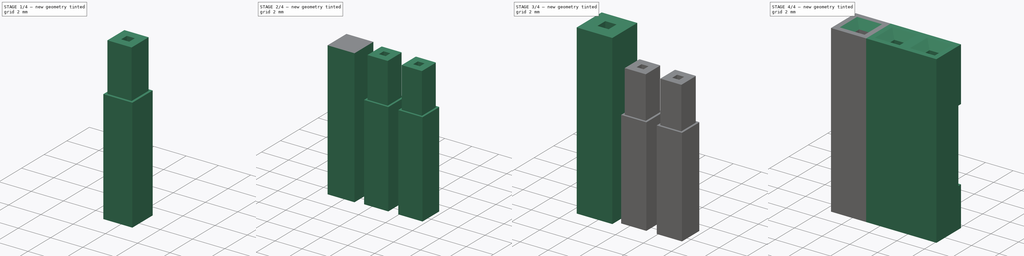
[diagram: build sequence overview — one tinted view per stage of 4, left to right]
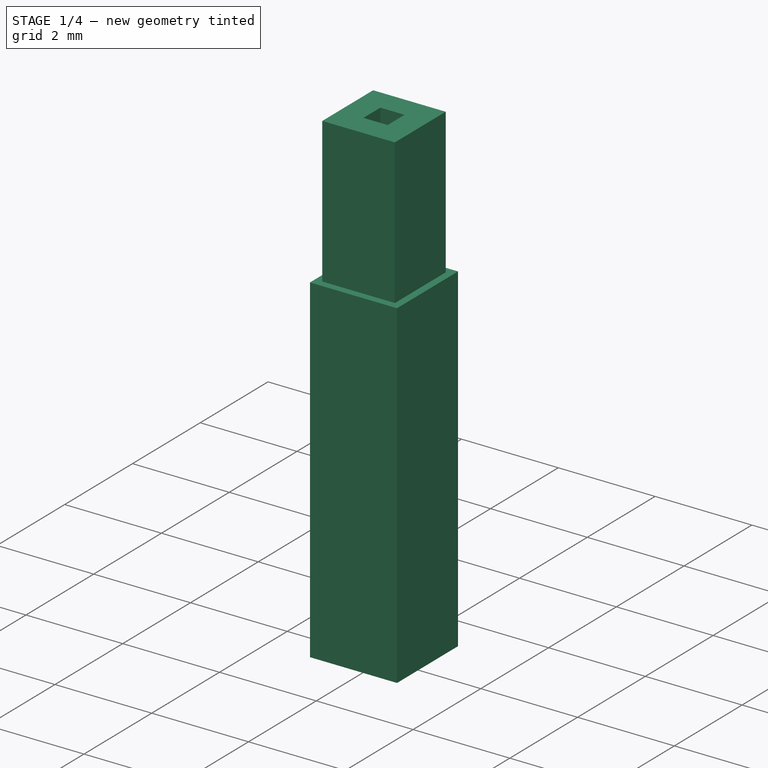
[diagram: stage 1 of 4 — iso view after this stage's code; geometry added in this stage tinted green]
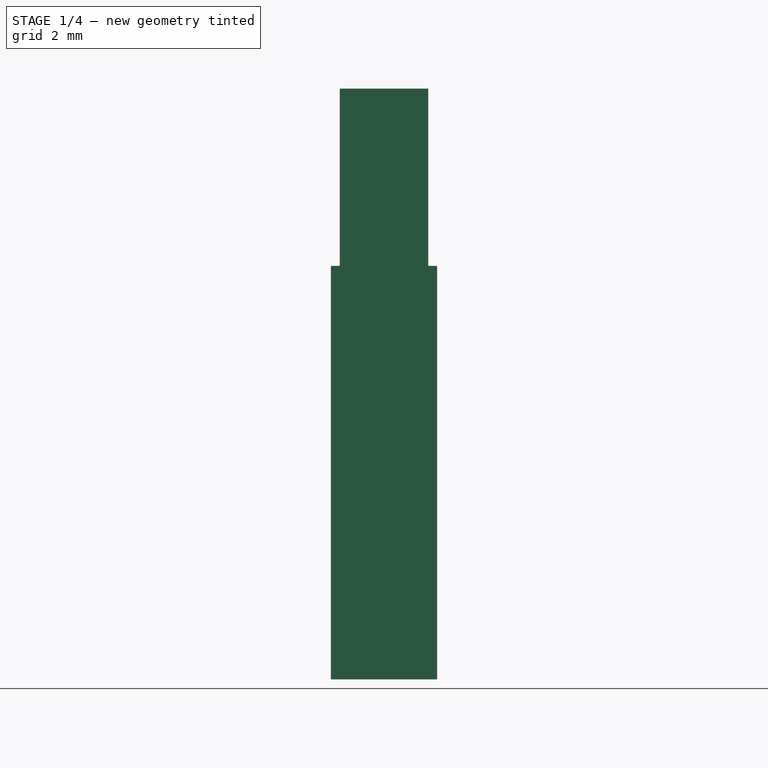
[diagram: stage 1 of 4 — front view after this stage's code; geometry added in this stage tinted green]
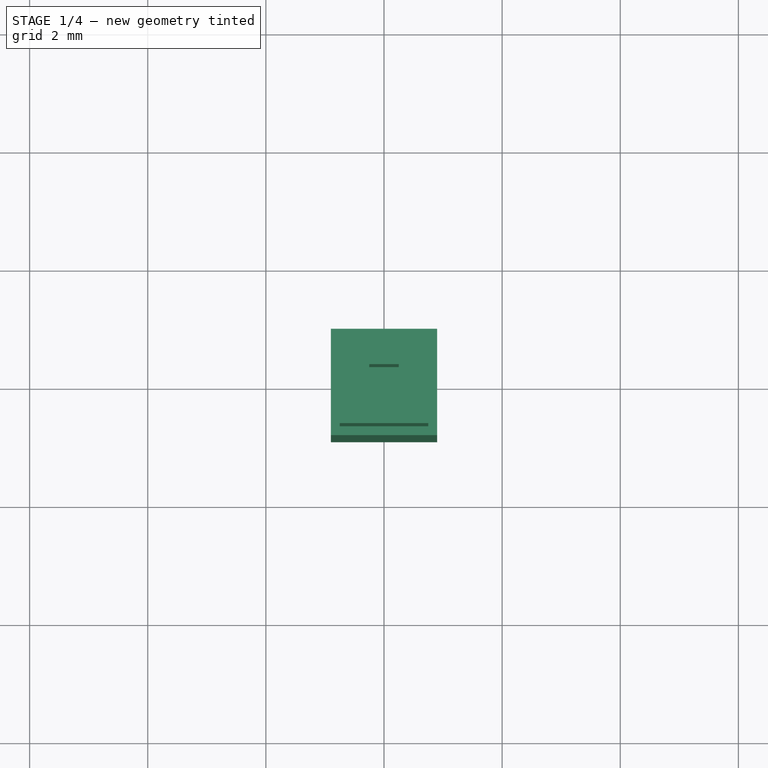
[diagram: stage 1 of 4 — top view after this stage's code; geometry added in this stage tinted green]
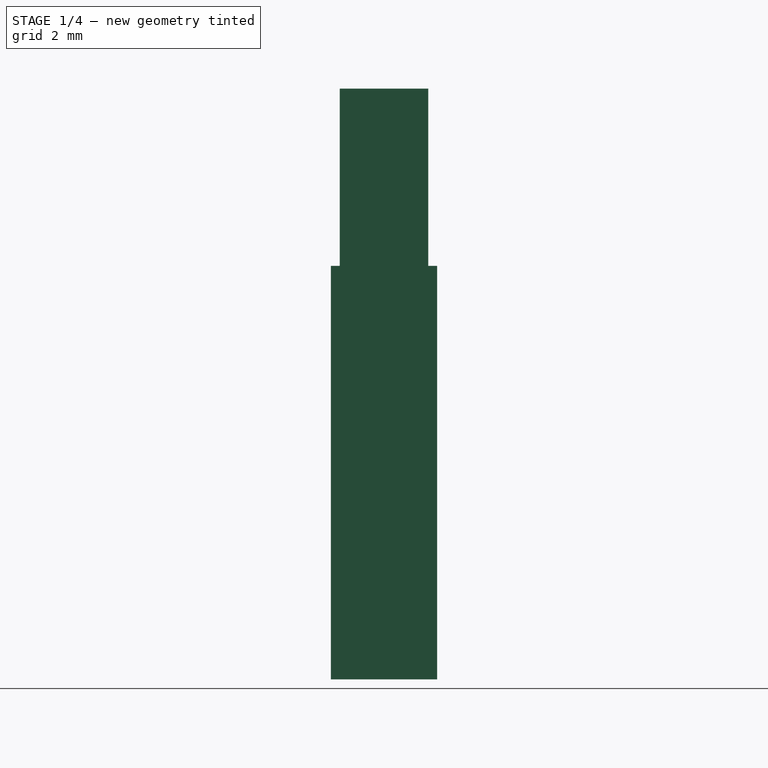
[diagram: stage 1 of 4 — right view after this stage's code; geometry added in this stage tinted green]
FCSTD DOCUMENT  (FreeCAD 0.16R6703 (Git))
Label: dupont-2_54mm-female-connector
License: CreativeCommons Attribution-ShareAlike
LicenseURL: http://creativecommons.org/licenses/by-sa/4.0/
objects: Part::Box×5, Part::Cut×2, Part::FeaturePython×2, Sketcher::SketchObject×1, PartDesign::Pocket×1, PartDesign::Chamfer×1, Part::Thickness×1, Part::MultiFuse×1, Part::Fillet×1, Spreadsheet::Sheet×1
note: 16 computed .brp shape members not serialized (recipe doc carries the construction recipe); baked Part::Feature solids carry a one-line shape summary decoded from their .brp

FEATURE [Part::Box] Box003  label="PinRear"
  Height = 7
  Length = 1.8
  Placement = pos=(-0.9,-0.9,0) rot=(0,0,1;0rad)
  Width = 1.8
FEATURE [Part::Box] Box004  label="PinFront"
  Height = 7
  Length = 1.5
  Placement = pos=(-0.75,-0.75,3) rot=(0,0,1;0rad)
  Width = 1.5
FEATURE [Part::Thickness] Thickness
  Faces = -> Box004 [Face6]
  Intersection = false
  Join = 0
  Mode = 0
  SelfIntersection = false
  Value = -0.5
FEATURE [Part::MultiFuse] Fusion  label="FemalePin"
  Shapes = -> [Box003,Thickness]
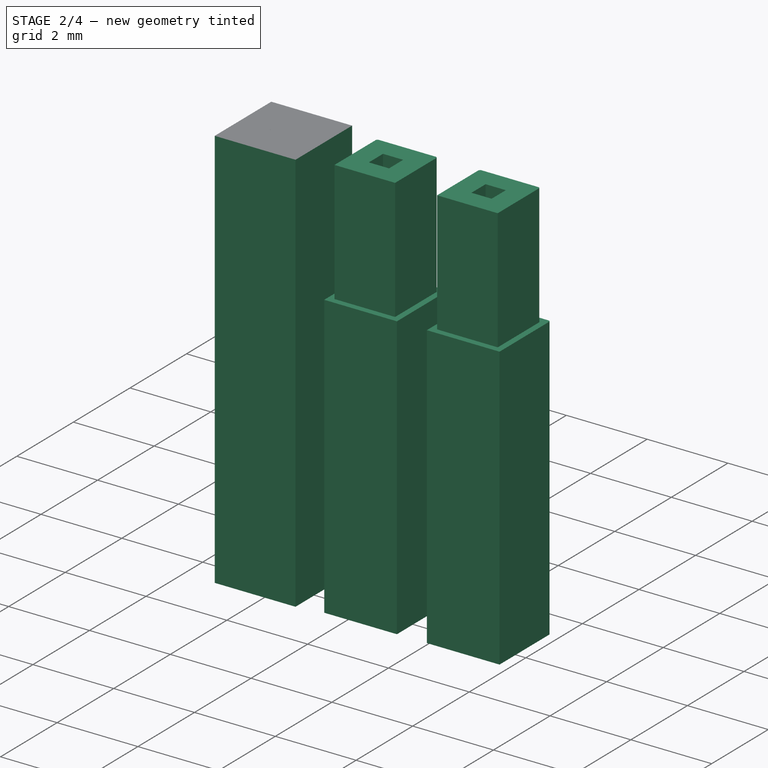
[diagram: stage 2 of 4 — iso view after this stage's code; geometry added in this stage tinted green]
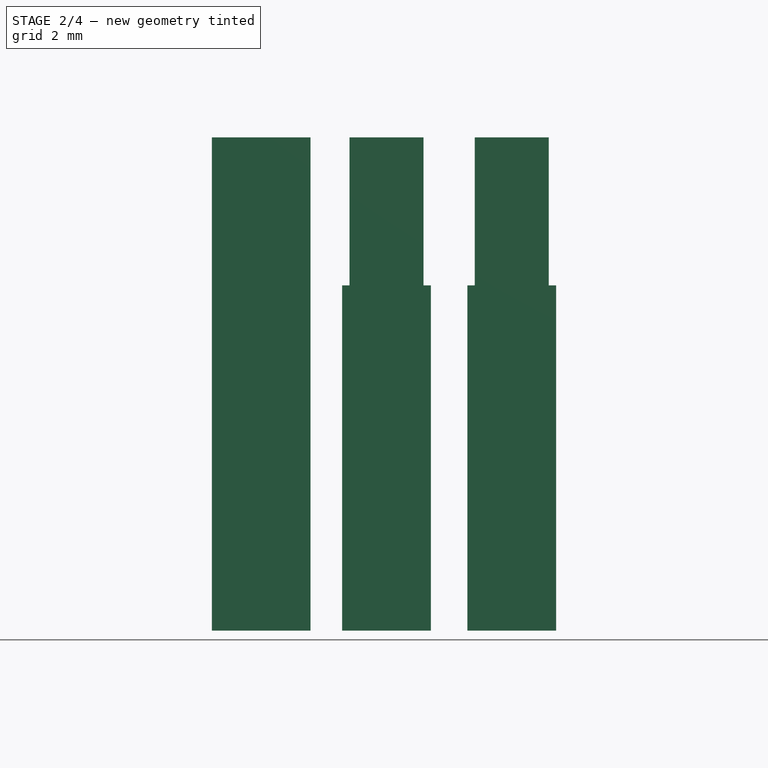
[diagram: stage 2 of 4 — front view after this stage's code; geometry added in this stage tinted green]
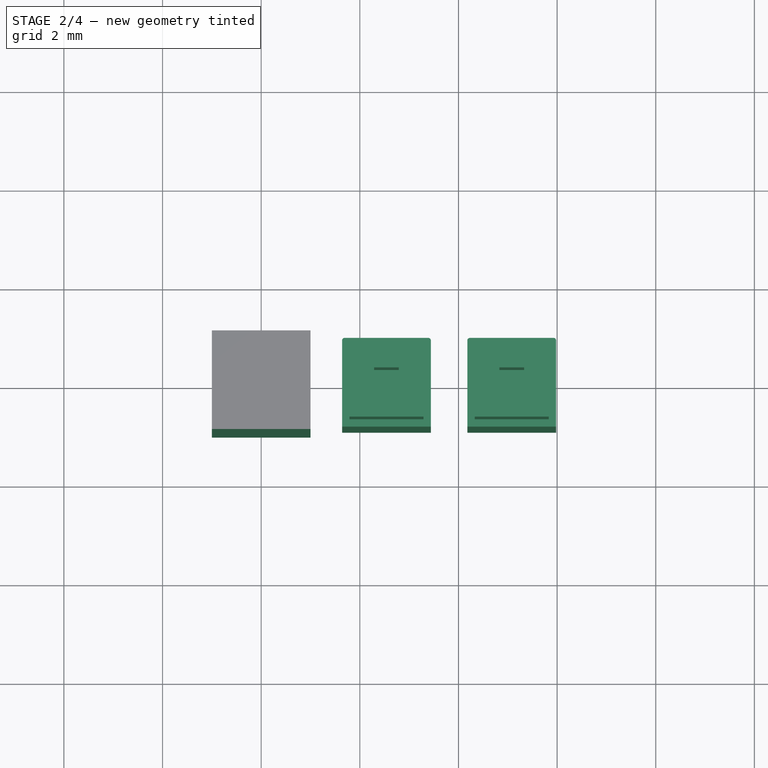
[diagram: stage 2 of 4 — top view after this stage's code; geometry added in this stage tinted green]
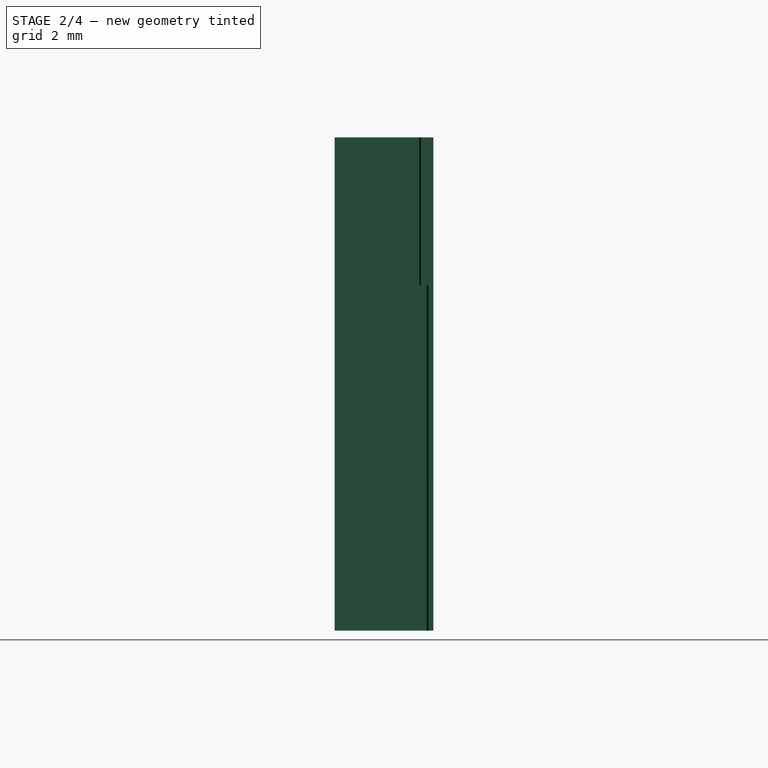
[diagram: stage 2 of 4 — right view after this stage's code; geometry added in this stage tinted green]
FEATURE [Part::Box] Box002  label="CableHole"
  Height = 10
  Length = 2
  Placement = pos=(-1,-1,0) rot=(0,0,1;0rad)
  Width = 2
FEATURE [Part::Fillet] Fillet  label="PinSingle"
  Base = -> Fusion
  Edges = 4 edges r=0.05: [Edge3,Edge15,Edge21,Edge23]
FEATURE [Part::FeaturePython] Array001  label="Pins"  # Draft array (typed FeaturePython)
  Angle = 360
  ArrayType = 0
  Axis = (0,0,1)
  Base = -> Fillet
  Center = (0,0,0)
  Fuse = false
  IntervalAxis = (0,0,0)
  IntervalX = (2.54,0,0)
  IntervalY = (0,1,0)
  IntervalZ = (0,0,0)
  NumberPolar = 1
  NumberX = 3
  NumberY = 1
  NumberZ = 1
  expr: NumberX = Pincount.B1
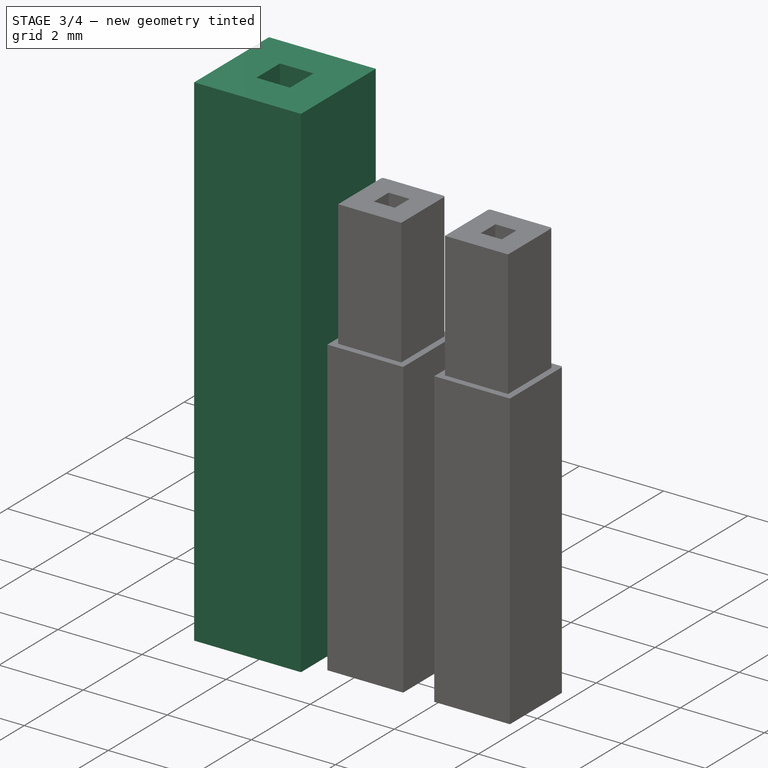
[diagram: stage 3 of 4 — iso view after this stage's code; geometry added in this stage tinted green]
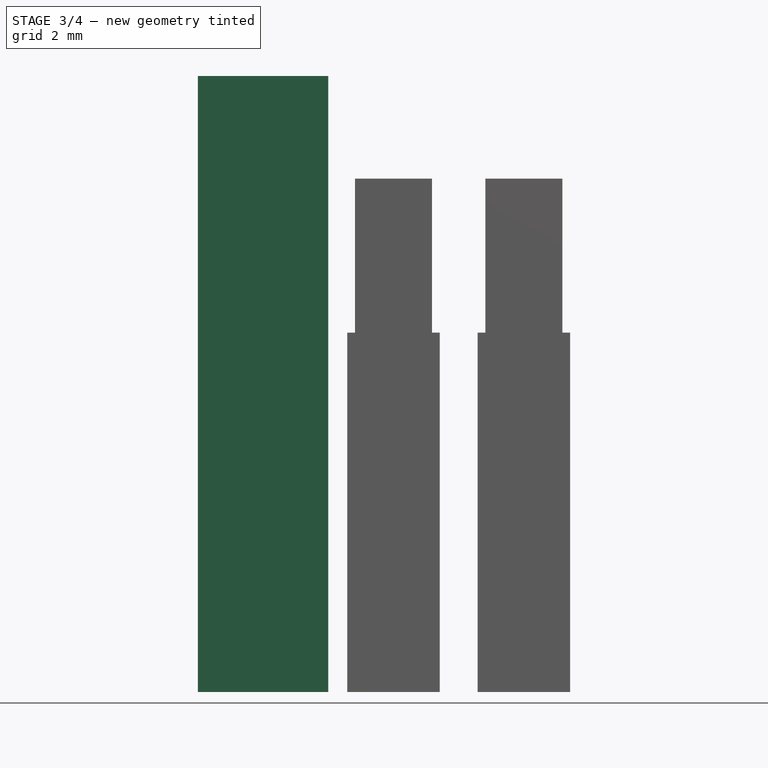
[diagram: stage 3 of 4 — front view after this stage's code; geometry added in this stage tinted green]
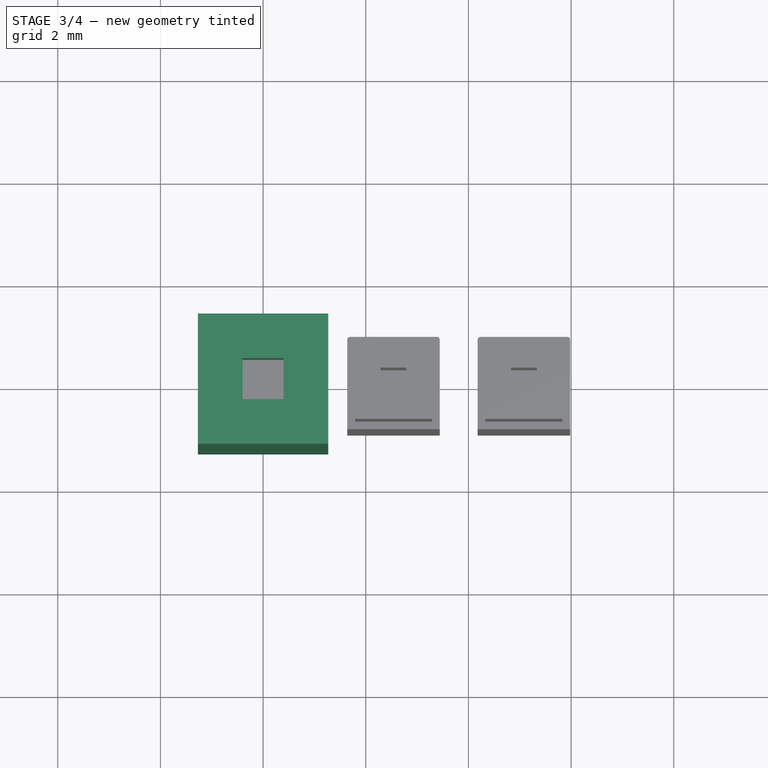
[diagram: stage 3 of 4 — top view after this stage's code; geometry added in this stage tinted green]
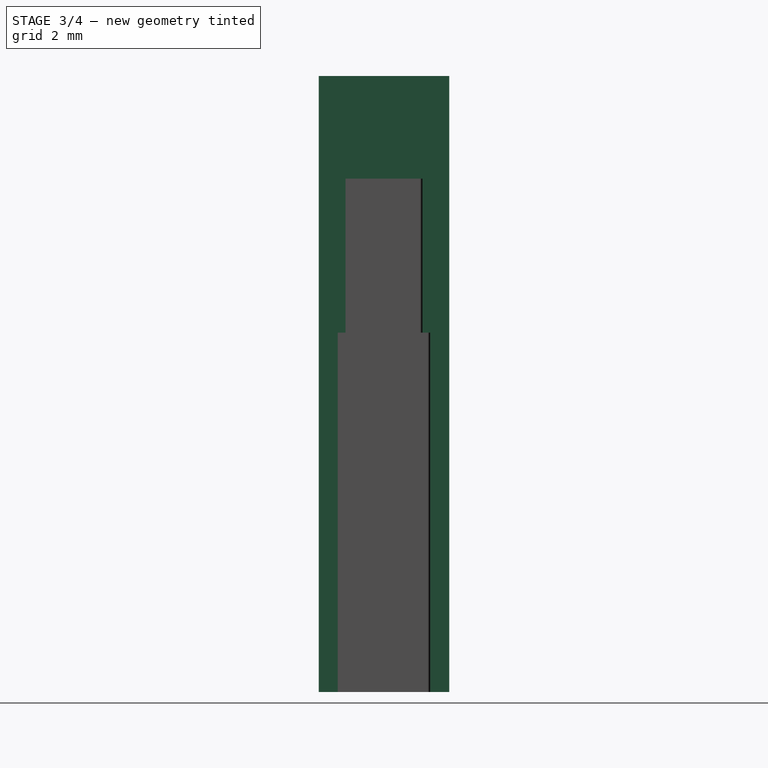
[diagram: stage 3 of 4 — right view after this stage's code; geometry added in this stage tinted green]
FEATURE [Part::Box] Box  label="CaseBig"
  Height = 12
  Length = 2.54
  Placement = pos=(-1.27,-1.27,0) rot=(0,0,1;0rad)
  Width = 2.54
FEATURE [Part::Box] Box001  label="TipHole"
  Height = 12
  Length = 0.8
  Placement = pos=(-0.4,-0.4,0) rot=(0,0,1;0rad)
  Width = 0.8
FEATURE [Part::Cut] Cut  label="Case w Hole"
  Base = -> Box
  Tool = -> Box001
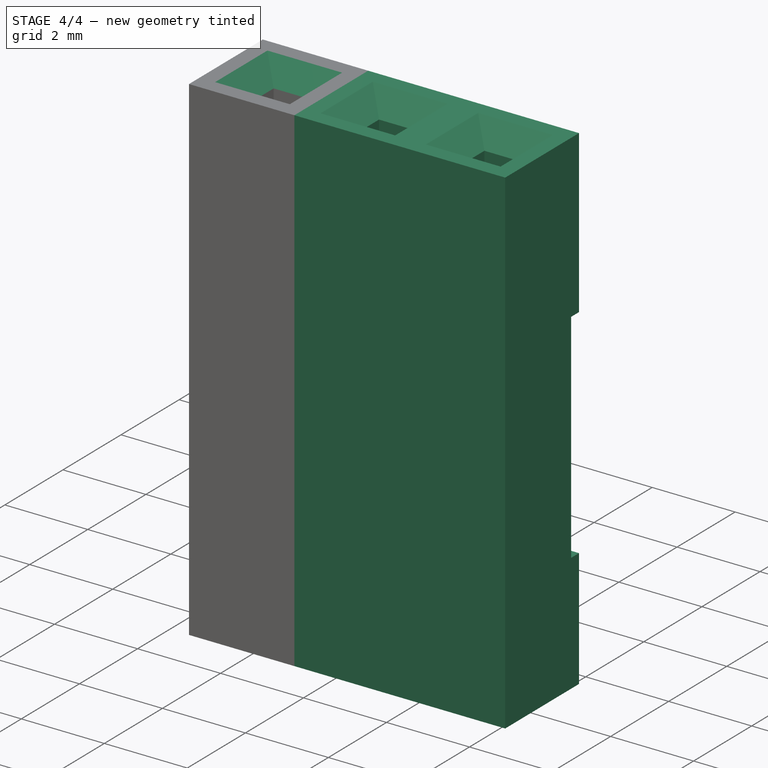
[diagram: stage 4 of 4 — iso view after this stage's code; geometry added in this stage tinted green]
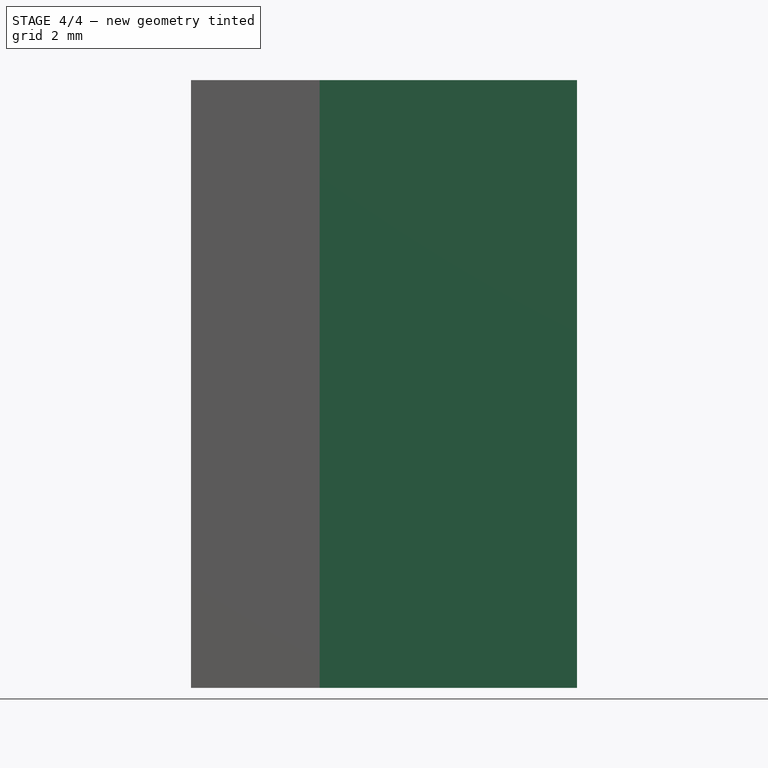
[diagram: stage 4 of 4 — front view after this stage's code; geometry added in this stage tinted green]
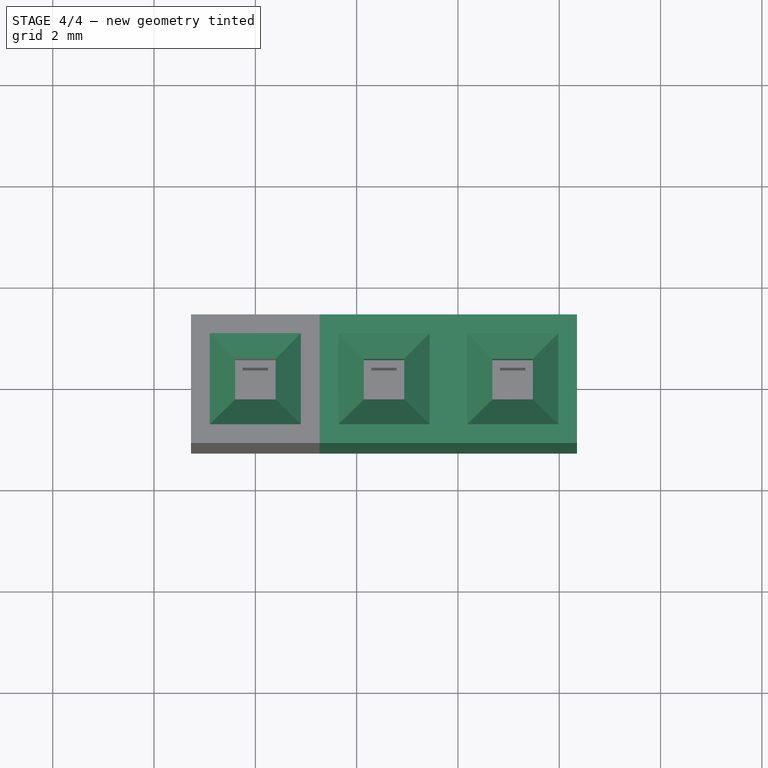
[diagram: stage 4 of 4 — top view after this stage's code; geometry added in this stage tinted green]
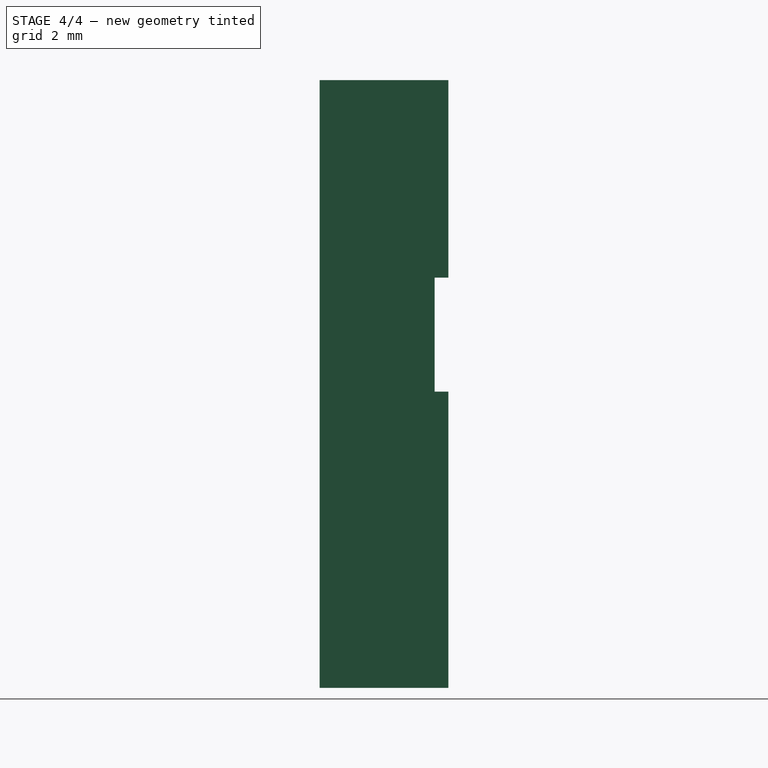
[diagram: stage 4 of 4 — right view after this stage's code; geometry added in this stage tinted green]
FEATURE [Part::Cut] Cut001  label="CaseOuter"
  Base = -> Cut
  Tool = -> Box002
FEATURE [Sketcher::SketchObject] Sketch  label="LidSketch"
  Placement = pos=(0,1.27,0) rot=(0,0.707107,0.707107;3.14159rad)
  Support = -> Cut001 [Face4]
  sketch-geometry (9):
    g0: LineSegment StartX=-1.27 StartY=8.1 StartZ=0 EndX=1.27 EndY=8.1 EndZ=0
    g1: LineSegment StartX=1.27 StartY=8.1 StartZ=0 EndX=1.27 EndY=2.85 EndZ=0
    g2: LineSegment StartX=1.27 StartY=2.85 StartZ=0 EndX=0.75 EndY=2.85 EndZ=0
    g3: LineSegment StartX=0.75 StartY=2.85 StartZ=0 EndX=0.75 EndY=5.85 EndZ=0
    g4: LineSegment StartX=0.75 StartY=5.85 StartZ=0 EndX=-0.75 EndY=5.85 EndZ=0
    g5: LineSegment StartX=-0.75 StartY=5.85 StartZ=0 EndX=-0.75 EndY=2.85 EndZ=0
    g6: LineSegment StartX=-0.75 StartY=2.85 StartZ=0 EndX=-1.27 EndY=2.85 EndZ=0
    g7: LineSegment StartX=-1.27 StartY=2.85 StartZ=0 EndX=-1.27 EndY=8.1 EndZ=0
    g8: LineSegment [constr] StartX=-0.75 StartY=2.85 StartZ=0 EndX=0.75 EndY=2.85 EndZ=0
  constraints (27):
    c: Horizontal(g0)
    c: Coincident(g0,g1)
    c: Vertical(g1)
    c: Coincident(g1,g2)
    c: Coincident(g2,g3)
    c: Vertical(g3)
    c: Coincident(g3,g4)
    c: Coincident(g4,g5)
    c: Vertical(g5)
    c: Coincident(g5,g6)
    c: Coincident(g6,g7)
    c: Coincident(g7,g0)
    c: Vertical(g7)
    c: Horizontal(g4)
    c: Horizontal(g6)
    c: Horizontal(g2)
    c: DistanceX(g4) = -1.5
    c: DistanceX(g0) = 2.54
    c: Symmetric(g4,g3,g-2)
    c: Symmetric(g0,g0,g-2)
    c: Equal(g6,g2)
    c: Coincident(g8,g5)
    c: Coincident(g8,g2)
    c: Horizontal(g8)
    c: DistanceY(g7) = 5.25
    c: DistanceY(g5) = -3
    c: DistanceY(g-1,g1) = 2.85
FEATURE [PartDesign::Pocket] Pocket  label="CaseRA"
  Length = 0.27
  Sketch = -> Sketch
  Type = 0
FEATURE [PartDesign::Chamfer] Chamfer  label="CaseSingle"
  Base = -> Pocket [Edge13,Edge14,Edge12,Edge15]
  Size = 0.5
FEATURE [Spreadsheet::Sheet] Spreadsheet  label="Pincount"
  cells = A1=Pin count; B1=3
FEATURE [Part::FeaturePython] Array  label="Case"  # Draft array (typed FeaturePython)
  Angle = 360
  ArrayType = 0
  Axis = (0,0,1)
  Base = -> Chamfer
  Center = (0,0,0)
  Fuse = false
  IntervalAxis = (0,0,0)
  IntervalX = (2.54,0,0)
  IntervalY = (0,1,0)
  IntervalZ = (0,0,0)
  NumberPolar = 0
  NumberX = 3
  NumberY = 0
  NumberZ = 0
  expr: NumberX = Pincount.B1
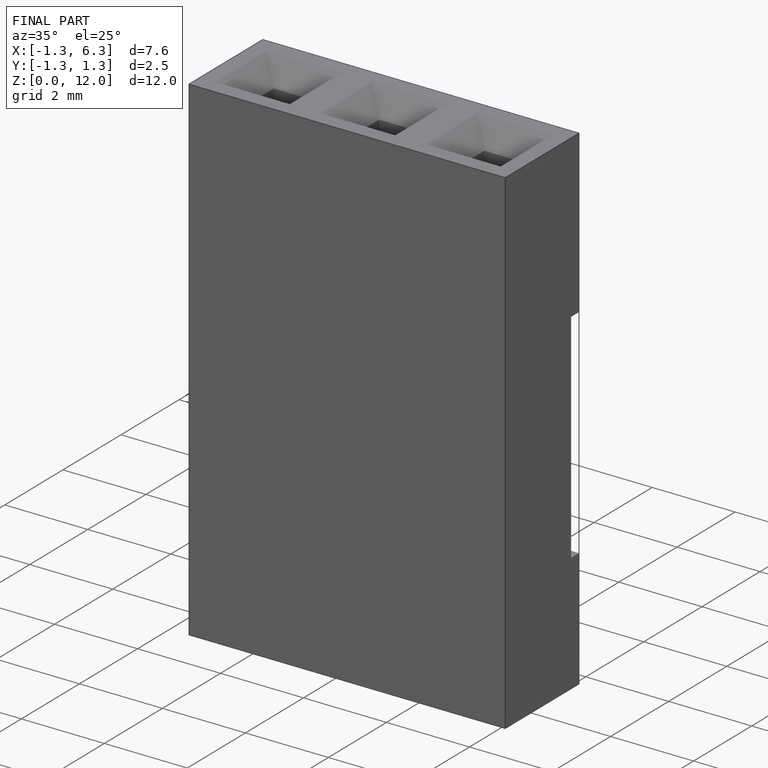
[diagram: finished part — iso view with bounding-box wireframe]
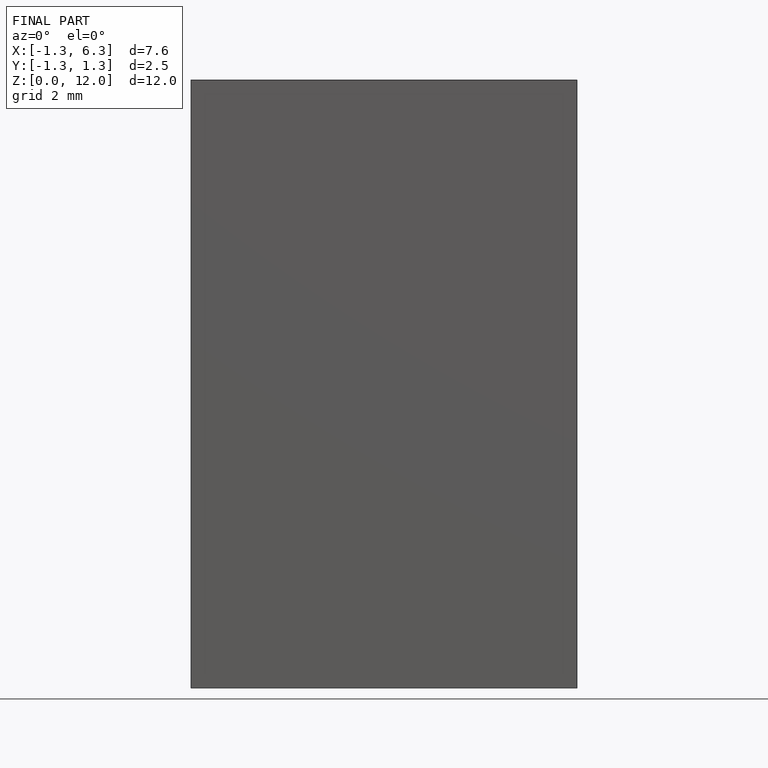
[diagram: finished part — front view with bounding-box wireframe]
